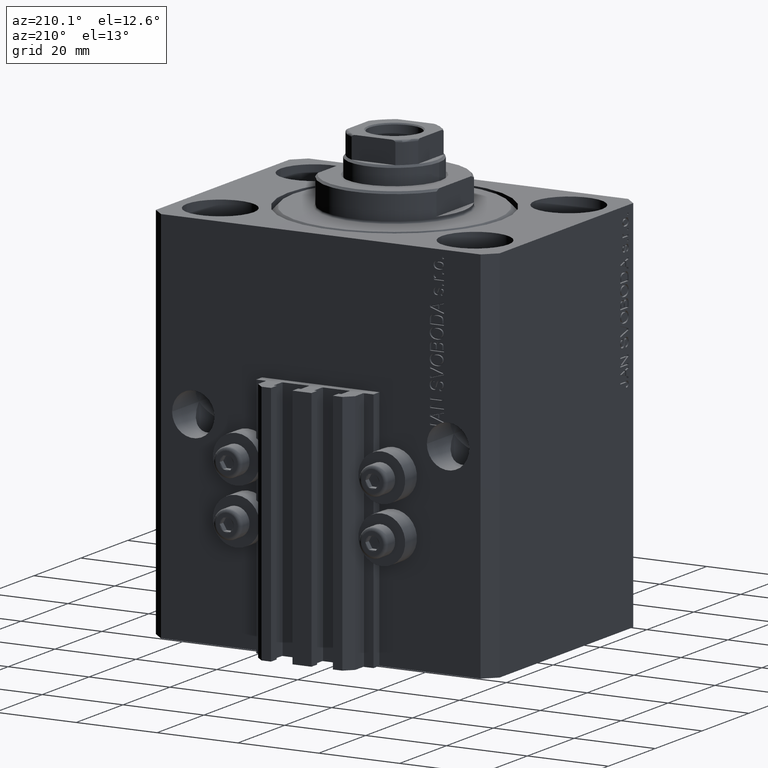
[diagram: clean part render]
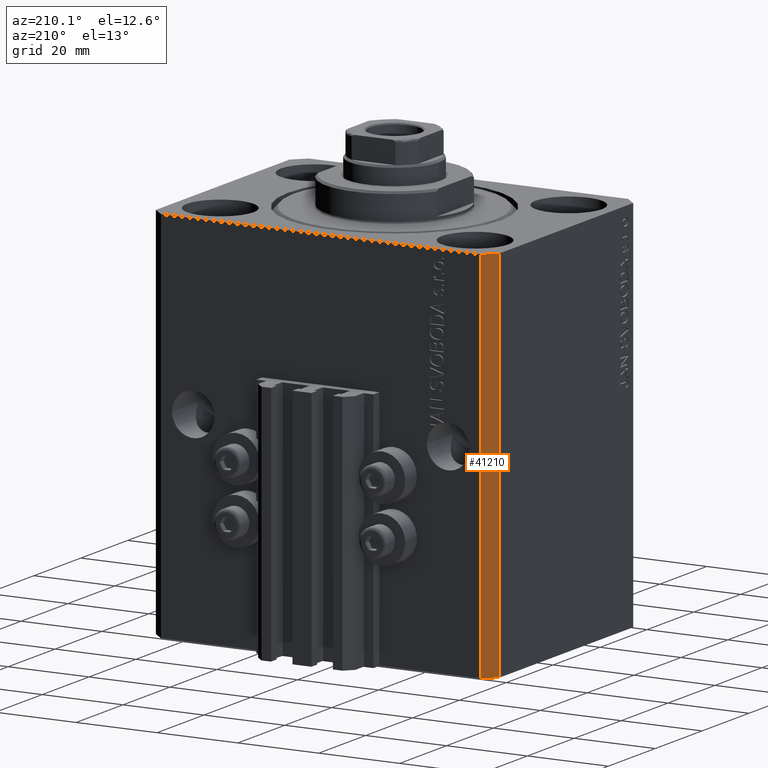
[diagram: same view with one face highlighted and labeled with its STEP entity id]
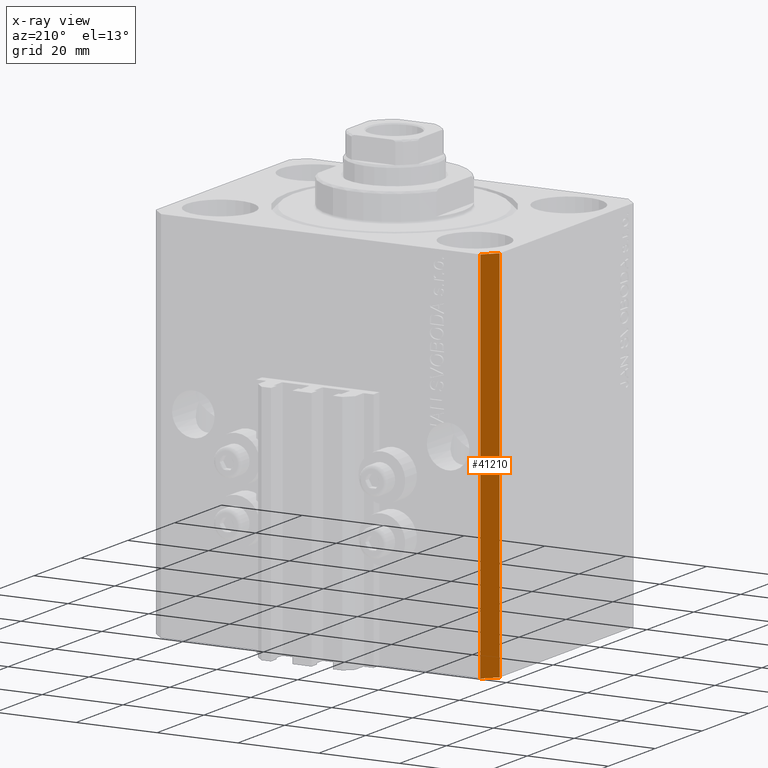
[diagram: x-ray of the same camera — body ghosted, the highlighted face saturated]
A machine part, auxiliary view. The second image highlights one B-rep face of the part: STEP entity #41210.
The next image is the same camera in x-ray: the body ghosted, the highlighted face saturated — about 0% of this face is hidden behind the body in this view.
In plain terms, the highlighted planar face has unit normal (-0.7071, 0.7071, 0).
Its self-contained STEP definition (entity closure, byte-faithful):
#180 = CARTESIAN_POINT ( 'NONE',  ( -39.50000000000000711, 31.50000000000000000, 0.000000000000000000 ) ) ;
#1834 = LINE ( 'NONE', #20359, #26904 ) ;
#2471 = DIRECTION ( 'NONE',  ( -0.7071067811865479058, 0.7071067811865471286, 0.000000000000000000 ) ) ;
#2535 = ORIENTED_EDGE ( 'NONE', *, *, #9105, .T. ) ;
#5681 = DIRECTION ( 'NONE',  ( -0.7071067811865471286, -0.7071067811865479058, 0.000000000000000000 ) ) ;
#5849 = PLANE ( 'NONE',  #16789 ) ;
#8484 = VERTEX_POINT ( 'NONE', #36816 ) ;
#8773 = CARTESIAN_POINT ( 'NONE',  ( -39.50000000000000711, 31.50000000000000000, -93.00000000000000000 ) ) ;
#9105 = EDGE_CURVE ( 'NONE', #26880, #8484, #1834, .T. ) ;
#10134 = EDGE_CURVE ( 'NONE', #8484, #33172, #31202, .T. ) ;
#13076 = EDGE_LOOP ( 'NONE', ( #45067, #42346, #2535, #19858 ) ) ;
#14102 = EDGE_CURVE ( 'NONE', #26880, #32084, #26091, .T. ) ;
#15279 = DIRECTION ( 'NONE',  ( 0.000000000000000000, 0.000000000000000000, 1.000000000000000000 ) ) ;
#15296 = CARTESIAN_POINT ( 'NONE',  ( -39.50000000000000711, 31.50000000000000000, 0.000000000000000000 ) ) ;
#16789 = AXIS2_PLACEMENT_3D ( 'NONE', #27976, #2471, #20042 ) ;
#19571 = CARTESIAN_POINT ( 'NONE',  ( -39.50000000000000711, 31.50000000000000000, -93.00000000000000000 ) ) ;
#19858 = ORIENTED_EDGE ( 'NONE', *, *, #10134, .T. ) ;
#20042 = DIRECTION ( 'NONE',  ( -0.7071067811865471286, -0.7071067811865479058, 0.000000000000000000 ) ) ;
#20359 = CARTESIAN_POINT ( 'NONE',  ( -39.50000000000000711, 31.50000000000000000, -93.00000000000000000 ) ) ;
#24982 = DIRECTION ( 'NONE',  ( -0.7071067811865471286, -0.7071067811865479058, 0.000000000000000000 ) ) ;
#26091 = LINE ( 'NONE', #19571, #33125 ) ;
#26880 = VERTEX_POINT ( 'NONE', #8773 ) ;
#26904 = VECTOR ( 'NONE', #5681, 1000.000000000000000 ) ;
#27976 = CARTESIAN_POINT ( 'NONE',  ( -39.50000000000000711, 31.50000000000000000, -93.00000000000000000 ) ) ;
#31202 = LINE ( 'NONE', #38663, #31588 ) ;
#31355 = FACE_OUTER_BOUND ( 'NONE', #13076, .T. ) ;
#31588 = VECTOR ( 'NONE', #41800, 1000.000000000000000 ) ;
#32084 = VERTEX_POINT ( 'NONE', #15296 ) ;
#33125 = VECTOR ( 'NONE', #15279, 1000.000000000000000 ) ;
#33172 = VERTEX_POINT ( 'NONE', #37603 ) ;
#36816 = CARTESIAN_POINT ( 'NONE',  ( -42.50000000000000000, 28.50000000000000000, -93.00000000000000000 ) ) ;
#37482 = VECTOR ( 'NONE', #24982, 1000.000000000000000 ) ;
#37603 = CARTESIAN_POINT ( 'NONE',  ( -42.50000000000000000, 28.50000000000000000, 0.000000000000000000 ) ) ;
#38663 = CARTESIAN_POINT ( 'NONE',  ( -42.50000000000000000, 28.50000000000000000, -93.00000000000000000 ) ) ;
#40749 = EDGE_CURVE ( 'NONE', #32084, #33172, #47364, .T. ) ;
#41210 = ADVANCED_FACE ( 'NONE', ( #31355 ), #5849, .T. ) ;
#41800 = DIRECTION ( 'NONE',  ( 0.000000000000000000, 0.000000000000000000, 1.000000000000000000 ) ) ;
#42346 = ORIENTED_EDGE ( 'NONE', *, *, #14102, .F. ) ;
#45067 = ORIENTED_EDGE ( 'NONE', *, *, #40749, .F. ) ;
#47364 = LINE ( 'NONE', #180, #37482 ) ;